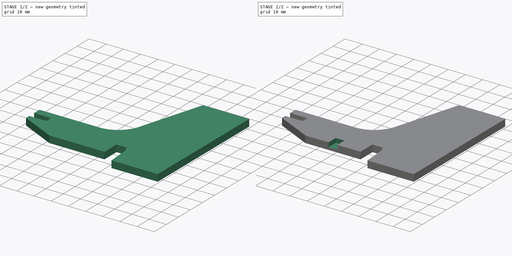
[diagram: build sequence overview — one tinted view per stage of 2, left to right]
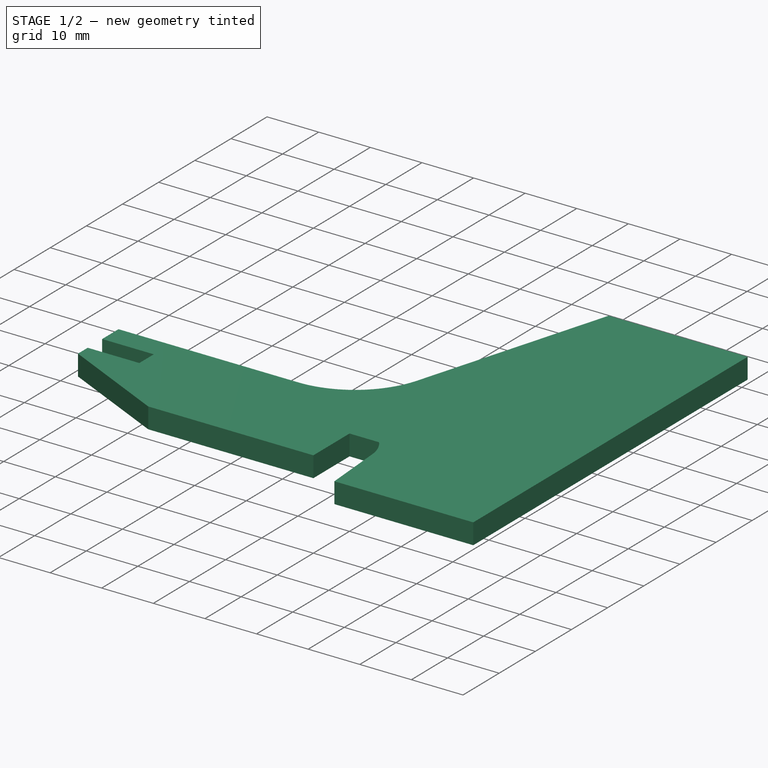
[diagram: stage 1 of 2 — iso view after this stage's code; geometry added in this stage tinted green]
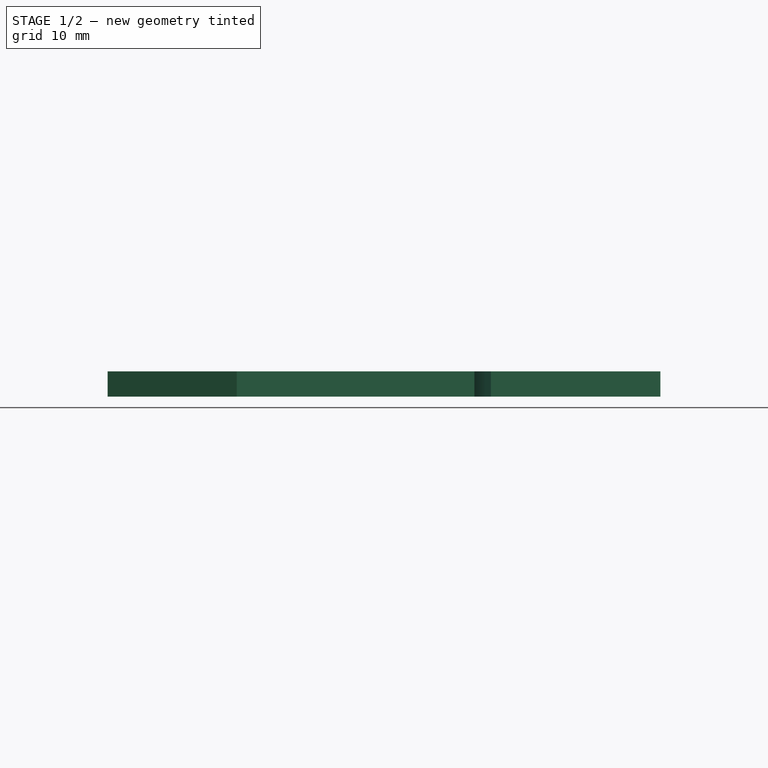
[diagram: stage 1 of 2 — front view after this stage's code; geometry added in this stage tinted green]
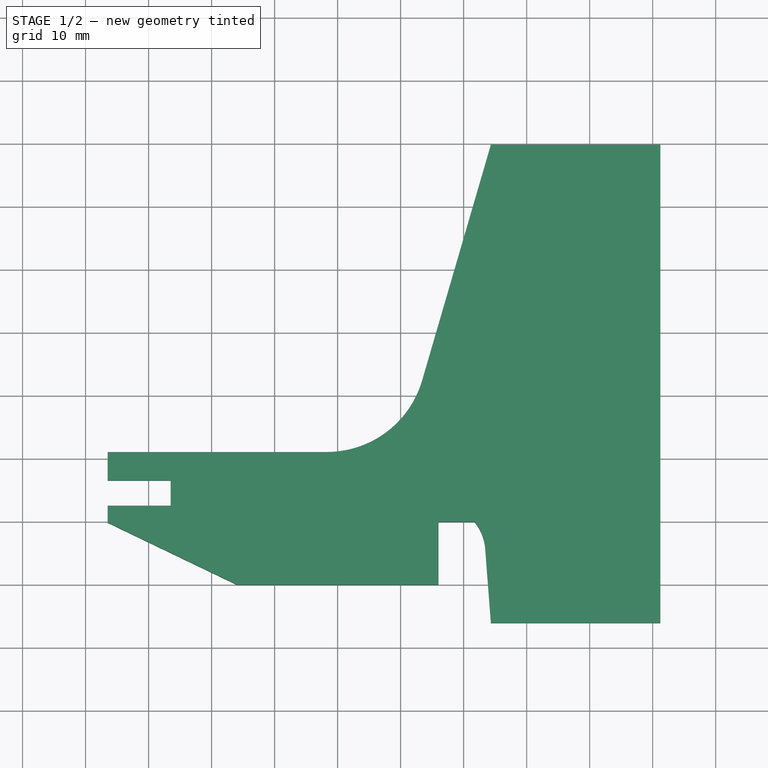
[diagram: stage 1 of 2 — top view after this stage's code; geometry added in this stage tinted green]
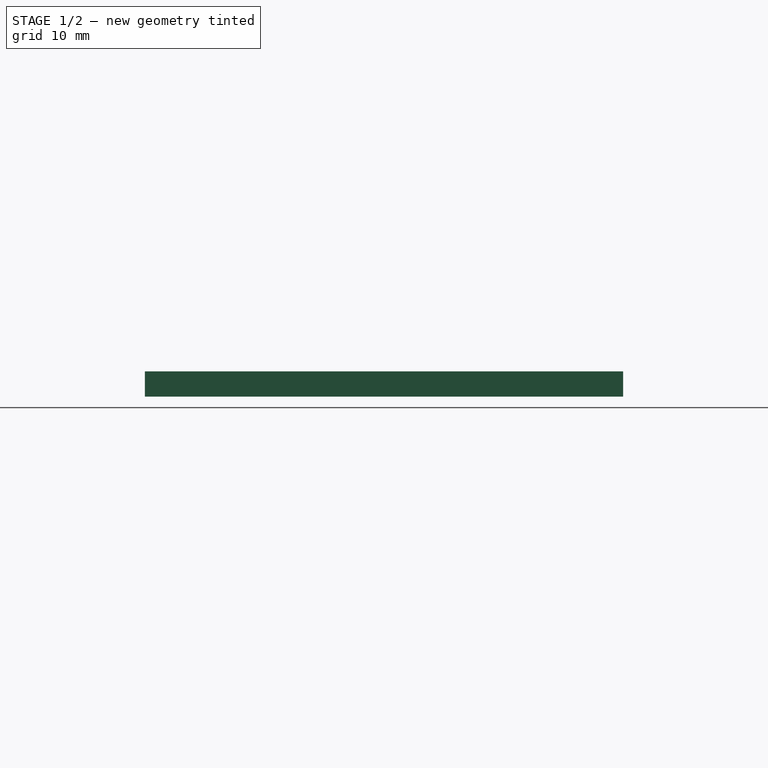
[diagram: stage 1 of 2 — right view after this stage's code; geometry added in this stage tinted green]
FCSTD DOCUMENT  (FreeCAD 0.18R16131 (Git))
Label: solo_banderuola4mm_v5
License: All rights reserved
LicenseURL: http://en.wikipedia.org/wiki/All_rights_reserved
objects: Sketcher::SketchObject×2, PartDesign::Pad×1, PartDesign::Pocket×1, PartDesign::Body×1
note: 7 computed .brp shape members not serialized (recipe doc carries the construction recipe); baked Part::Feature solids carry a one-line shape summary decoded from their .brp

FEATURE [Sketcher::SketchObject] CopySketch004
  sketch-geometry (25):
    g0: LineSegment StartX=-36.5085 StartY=11.06 StartZ=0 EndX=-1.7237 EndY=11.06 EndZ=0
    g1: LineSegment StartX=13.4079 StartY=22.4098 StartZ=0 EndX=24.3191 EndY=59.8325 EndZ=0
    g2: LineSegment StartX=24.3191 StartY=59.8325 StartZ=0 EndX=51.2261 EndY=59.8325 EndZ=0
    g3: ArcOfCircle CenterX=-1.7237 CenterY=26.8216 CenterZ=0 NormalX=0 NormalY=0 NormalZ=1 AngleXU=0 Radius=15.7616 StartAngle=4.71239 EndAngle=5.99948
    g4: GeomPoint X=16 Y=0 Z=0
    g5: LineSegment StartX=16 StartY=-10 StartZ=0 EndX=16 EndY=0 EndZ=0
    g6: GeomPoint X=-2.15 Y=-10 Z=0
    g7: GeomPoint X=2.15 Y=-10 Z=0
    g8: LineSegment [constr] StartX=-2.15 StartY=-10 StartZ=0 EndX=-2.15 EndY=1.64739 EndZ=0
    g9: LineSegment [constr] StartX=-2.15 StartY=1.64739 StartZ=0 EndX=2.15 EndY=1.64739 EndZ=0
    g10: LineSegment [constr] StartX=2.15 StartY=1.64739 StartZ=0 EndX=2.15 EndY=-10 EndZ=0
    g11: ArcOfCircle CenterX=15.5785 CenterY=-4.94395 CenterZ=0 NormalX=0 NormalY=0 NormalZ=1 AngleXU=0 Radius=7.87288 StartAngle=0.112427 EndAngle=0.678944
    g12: LineSegment StartX=23.4017 StartY=-4.06069 StartZ=0 EndX=24.3191 EndY=-16.0675 EndZ=0
    g13: LineSegment StartX=24.3191 StartY=-16.0675 StartZ=0 EndX=51.2261 EndY=-16.0675 EndZ=0
    g14: LineSegment StartX=16 StartY=0 StartZ=0 EndX=21.7055 EndY=0 EndZ=0
    g15: LineSegment StartX=-36.5085 StartY=11.06 StartZ=0 EndX=-36.5085 EndY=6.54926 EndZ=0
    g16: LineSegment StartX=-16 StartY=-10 StartZ=0 EndX=-36.5085 EndY=-0.144815 EndZ=0
    g17: LineSegment StartX=-36.5085 StartY=6.54926 StartZ=0 EndX=-26.5085 EndY=6.54926 EndZ=0
    g18: LineSegment StartX=-26.5085 StartY=6.54926 StartZ=0 EndX=-26.5085 EndY=2.54926 EndZ=0
    g19: LineSegment StartX=-26.5085 StartY=2.54926 StartZ=0 EndX=-36.5085 EndY=2.54926 EndZ=0
    g20: LineSegment [constr] StartX=15.9818 StartY=5.77886 StartZ=0 EndX=-16.7629 EndY=5.77886 EndZ=0
    g21: LineSegment [constr] StartX=22.8928 StartY=7.91796 StartZ=0 EndX=-22.1107 EndY=7.91796 EndZ=0
    g22: LineSegment StartX=-36.5085 StartY=2.54926 StartZ=0 EndX=-36.5085 EndY=-0.144815 EndZ=0
    g23: LineSegment StartX=51.2261 StartY=59.8325 StartZ=0 EndX=51.2261 EndY=-16.0675 EndZ=0
    g24: LineSegment StartX=-16 StartY=-10 StartZ=0 EndX=16 EndY=-10 EndZ=0
  constraints (47):
    c: Horizontal(g0)
    c: Coincident(g1,g2)
    c: Horizontal(g2)
    c: Tangent(g0,g3) = -1.5708
    c: Tangent(g1,g3) = -1.5708
    c: Vertical(g5)
    c: Coincident(g5,g4)
    c: DistanceY(g5,g5) = 10
    c: Symmetric(g6,g7,g-2)
    c: Coincident(g8,g6)
    c: Vertical(g8)
    c: Coincident(g8,g9)
    c: Horizontal(g9)
    c: Coincident(g9,g10)
    c: Coincident(g10,g7)
    c: Vertical(g10)
    c: Coincident(g12,g13)
    c: Horizontal(g13)
    c: PointOnObject(g4,g-1)
    c: Equal(g2,g13)
    c: Coincident(g14,g4)
    c: Horizontal(g14)
    c: Coincident(g12,g11)
    c: Coincident(g11,g14)
    c: Coincident(g15,g0)
    c: Vertical(g15)
    c: DistanceX(g16,g5) = 32
    c: Coincident(g16,g22)
    c: Coincident(g17,g18)
    c: Coincident(g18,g19)
    c: Horizontal(g17)
    c: Horizontal(g19)
    c: Vertical(g18)
    c: DistanceY(g18,g18) = 4
    c: DistanceX(g19,g19) = 10
    c: Horizontal(g20)
    c: Horizontal(g21)
    c: Coincident(g15,g17)
    c: PointOnObject(g22,g19)
    c: Tangent(g15,g22)
    c: Coincident(g23,g2)
    c: Coincident(g23,g13)
    c: Vertical(g23)
    c: DistanceY(g23,g23) = 75.9
    c: Coincident(g24,g16)
    c: Coincident(g24,g5)
    c: Horizontal(g24)
FEATURE [PartDesign::Pad] Pad
  Length = 4
  Length2 = 100
  Midplane = true
  Profile = -> CopySketch004
  Type = 0
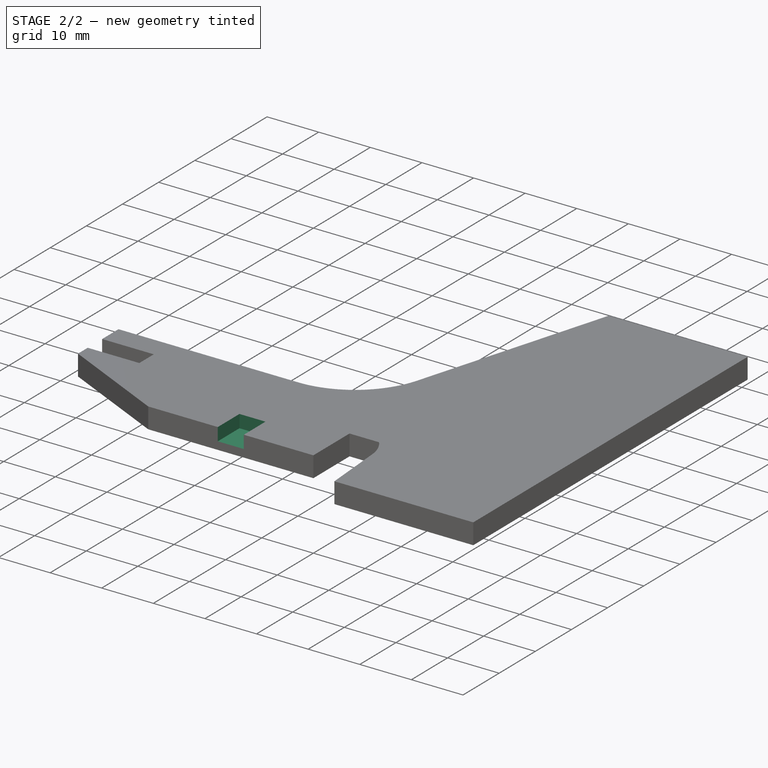
[diagram: stage 2 of 2 — iso view after this stage's code; geometry added in this stage tinted green]
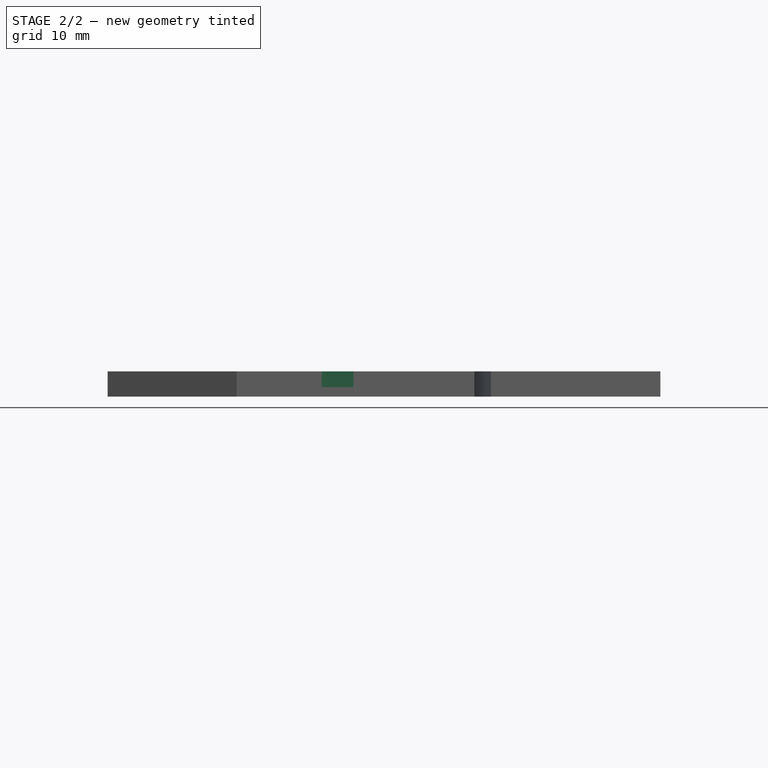
[diagram: stage 2 of 2 — front view after this stage's code; geometry added in this stage tinted green]
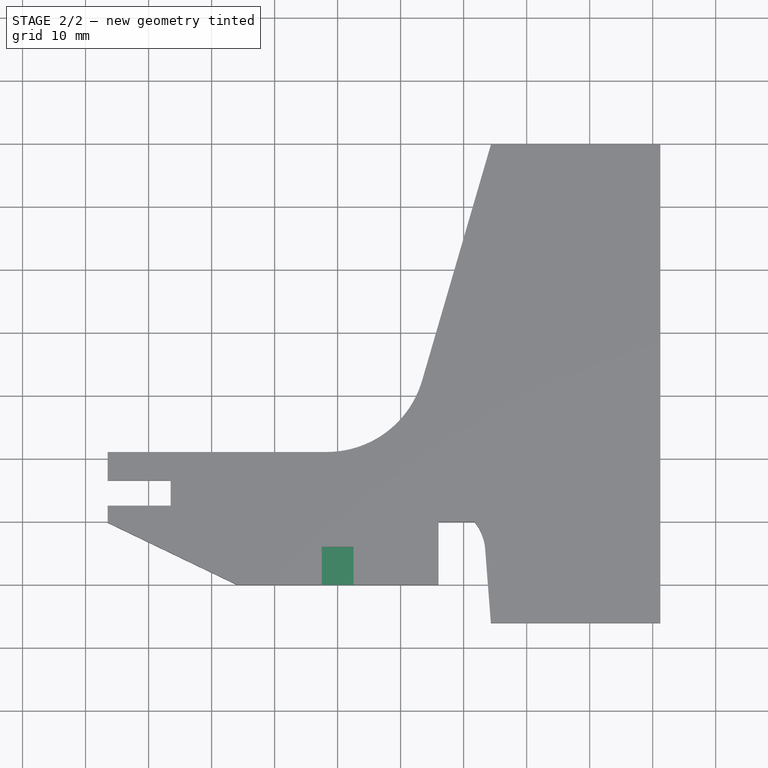
[diagram: stage 2 of 2 — top view after this stage's code; geometry added in this stage tinted green]
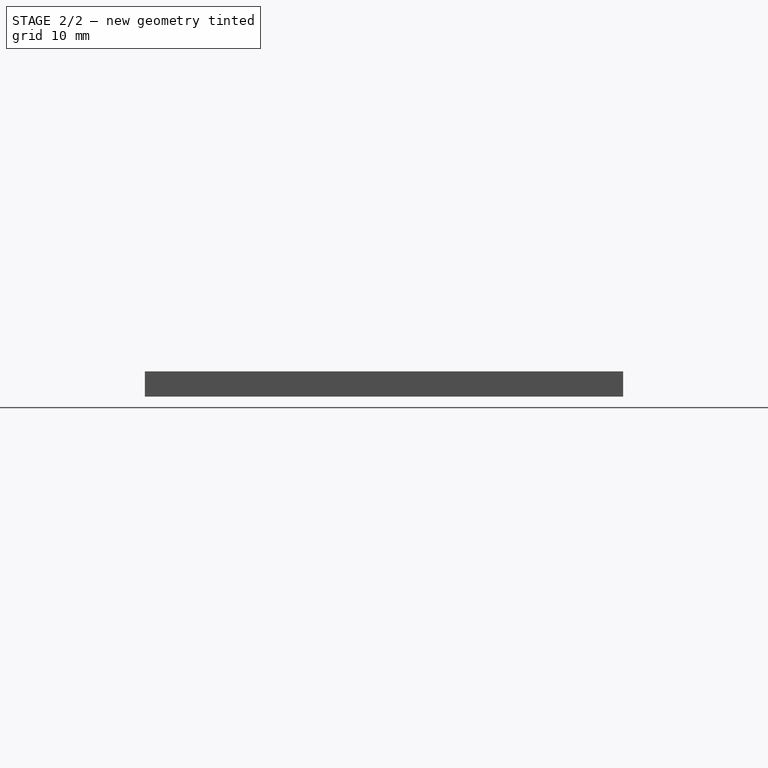
[diagram: stage 2 of 2 — right view after this stage's code; geometry added in this stage tinted green]
FEATURE [Sketcher::SketchObject] Sketch
  ExternalGeometry = -> [Pad]
  MapMode = 5
  Placement = pos=(0,0,2) rot=(0,0,1;0rad)
  Support = -> [Pad]
  sketch-geometry (4):
    g0: LineSegment StartX=-2.52 StartY=-10 StartZ=0 EndX=2.52 EndY=-10 EndZ=0
    g1: LineSegment StartX=2.52 StartY=-10 StartZ=0 EndX=2.52 EndY=-4 EndZ=0
    g2: LineSegment StartX=2.52 StartY=-4 StartZ=0 EndX=-2.52 EndY=-4 EndZ=0
    g3: LineSegment StartX=-2.52 StartY=-4 StartZ=0 EndX=-2.52 EndY=-10 EndZ=0
  constraints (11):
    c: Coincident(g0,g1)
    c: Coincident(g1,g2)
    c: Coincident(g2,g3)
    c: Coincident(g3,g0)
    c: Horizontal(g2)
    c: Vertical(g1)
    c: Vertical(g3)
    c: PointOnObject(g0,g-3)
    c: Symmetric(g0,g0,g-2)
    c: DistanceX(g-1,g0) = 2.52
    c: DistanceY(g1,g1) = 6
FEATURE [PartDesign::Pocket] Pocket
  BaseFeature = -> Pad
  Length = 2.5
  Length2 = 100
  Profile = -> Sketch
  Type = 0
FEATURE [PartDesign::Body] Body001
  Group = -> [Pad,Sketch,Pocket]
  Origin = -> Origin001
  Tip = -> Pocket
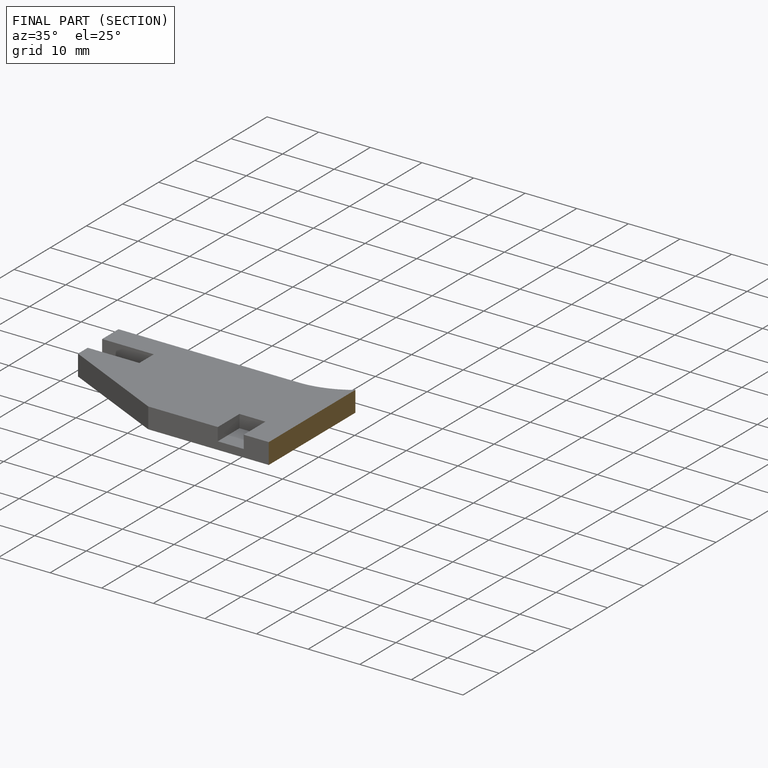
[diagram: finished part — half-section view (interior)]
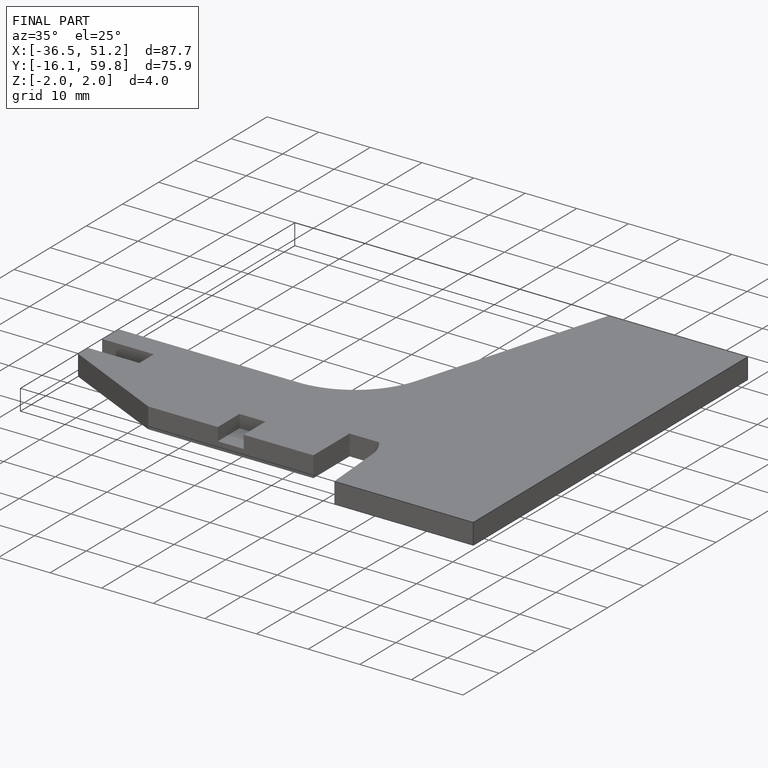
[diagram: finished part — iso view with bounding-box wireframe]
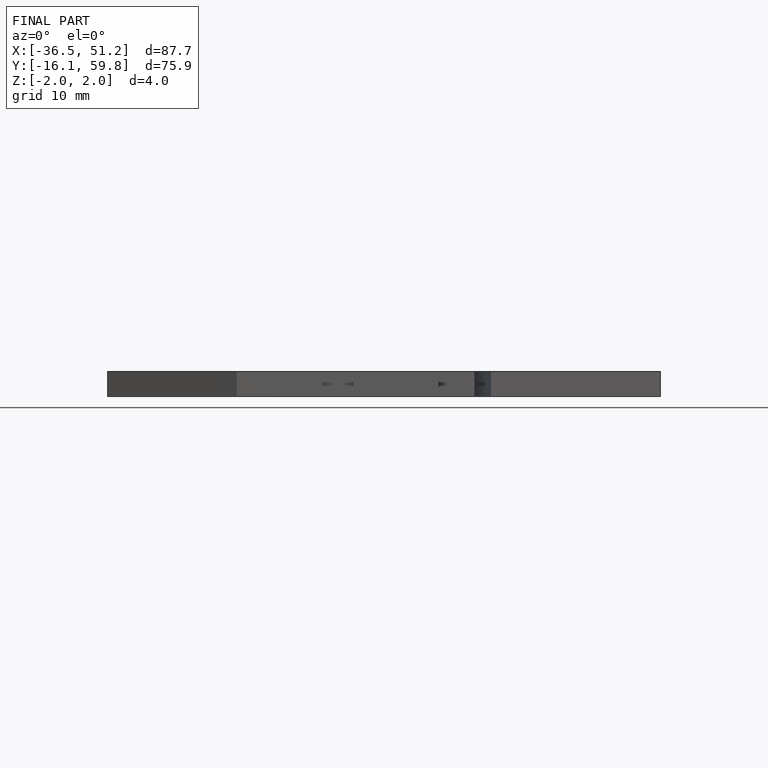
[diagram: finished part — front view with bounding-box wireframe]
